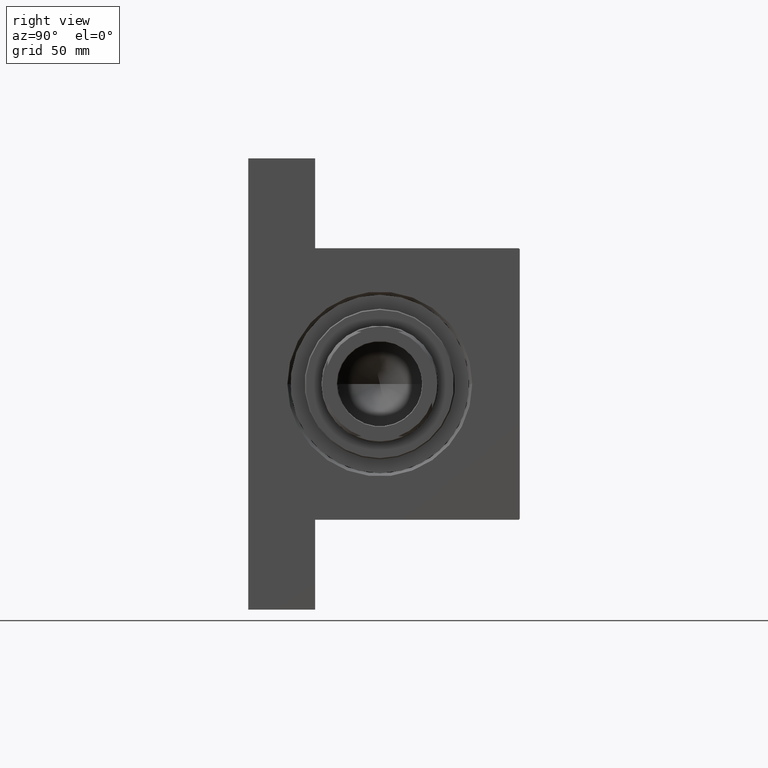
[diagram: clean part render]
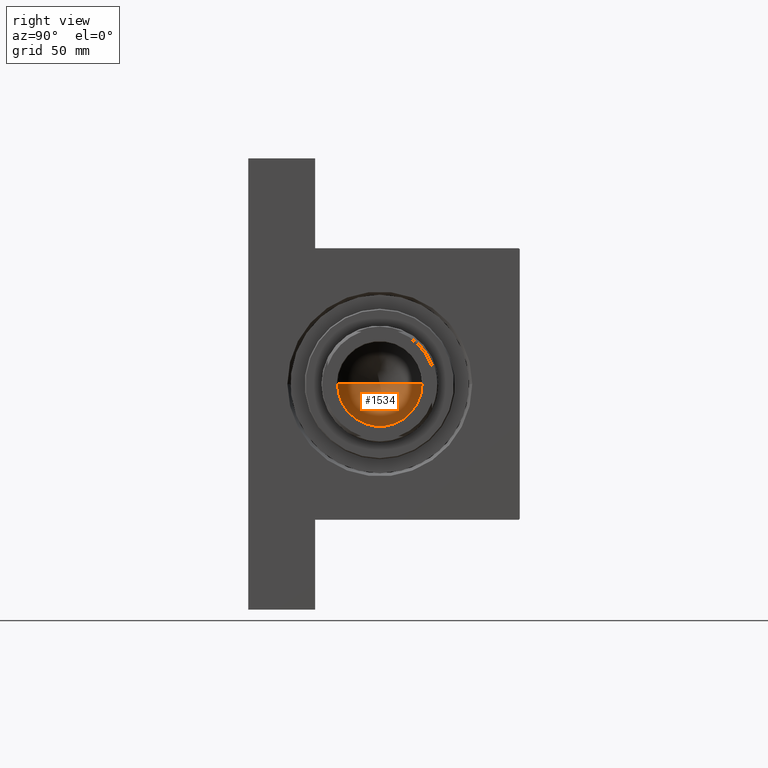
[diagram: same view with one face highlighted and labeled with its STEP entity id]
A machine part, right view. The second image highlights one B-rep face of the part: STEP entity #1534.
In plain terms, the highlighted conical surface has half-angle 59 deg.
Its self-contained STEP definition (entity closure, byte-faithful):
#1534 = ADVANCED_FACE ( 'NONE', ( #9066 ), #5214, .F. ) ;
#5214 = CONICAL_SURFACE ( 'NONE', #21493, 20.24999999999998934, 1.029744258676652979 ) ;
#5347 = CARTESIAN_POINT ( 'NONE',  ( -20.24999999999998934, 2.479909768273389117E-15, 117.0000000000000142 ) ) ;
#9066 = FACE_OUTER_BOUND ( 'NONE', #34546, .T. ) ;
#9890 = LINE ( 'NONE', #13530, #14228 ) ;
#10647 = AXIS2_PLACEMENT_3D ( 'NONE', #20565, #24451, #17150 ) ;
#11435 = ORIENTED_EDGE ( 'NONE', *, *, #26147, .T. ) ;
#13530 = CARTESIAN_POINT ( 'NONE',  ( -20.24999999999998934, 2.479909768273389117E-15, 117.0000000000000142 ) ) ;
#14228 = VECTOR ( 'NONE', #31821, 1000.000000000000000 ) ;
#17150 = DIRECTION ( 'NONE',  ( 1.000000000000000000, 0.000000000000000000, 0.000000000000000000 ) ) ;
#17942 = VECTOR ( 'NONE', #20812, 1000.000000000000000 ) ;
#18363 = ORIENTED_EDGE ( 'NONE', *, *, #21359, .F. ) ;
#20565 = CARTESIAN_POINT ( 'NONE',  ( 0.000000000000000000, 0.000000000000000000, 117.0000000000000142 ) ) ;
#20812 = DIRECTION ( 'NONE',  ( 0.8571673007021115565, 0.000000000000000000, 0.5150380749100554878 ) ) ;
#21359 = EDGE_CURVE ( 'NONE', #42034, #23566, #9890, .T. ) ;
#21493 = AXIS2_PLACEMENT_3D ( 'NONE', #46769, #42662, #42422 ) ;
#23566 = VERTEX_POINT ( 'NONE', #5347 ) ;
#24451 = DIRECTION ( 'NONE',  ( -0.000000000000000000, -0.000000000000000000, 1.000000000000000000 ) ) ;
#26147 = EDGE_CURVE ( 'NONE', #42034, #45550, #39579, .T. ) ;
#26292 = ORIENTED_EDGE ( 'NONE', *, *, #47793, .T. ) ;
#31821 = DIRECTION ( 'NONE',  ( -0.8571673007021115565, 1.049727191138617710E-16, 0.5150380749100554878 ) ) ;
#34546 = EDGE_LOOP ( 'NONE', ( #18363, #11435, #26292 ) ) ;
#34636 = CARTESIAN_POINT ( 'NONE',  ( 20.24999999999998934, 0.000000000000000000, 117.0000000000000142 ) ) ;
#35502 = CIRCLE ( 'NONE', #10647, 20.24999999999998934 ) ;
#39579 = LINE ( 'NONE', #40302, #17942 ) ;
#40302 = CARTESIAN_POINT ( 'NONE',  ( 20.24999999999998934, 0.000000000000000000, 117.0000000000000142 ) ) ;
#42034 = VERTEX_POINT ( 'NONE', #43905 ) ;
#42422 = DIRECTION ( 'NONE',  ( 1.000000000000000000, 0.000000000000000000, 0.000000000000000000 ) ) ;
#42662 = DIRECTION ( 'NONE',  ( -0.000000000000000000, -0.000000000000000000, 1.000000000000000000 ) ) ;
#43905 = CARTESIAN_POINT ( 'NONE',  ( -1.584115414415908206E-14, 0.000000000000000000, 104.8325724646918928 ) ) ;
#45550 = VERTEX_POINT ( 'NONE', #34636 ) ;
#46769 = CARTESIAN_POINT ( 'NONE',  ( 0.000000000000000000, 0.000000000000000000, 117.0000000000000142 ) ) ;
#47793 = EDGE_CURVE ( 'NONE', #45550, #23566, #35502, .T. ) ;